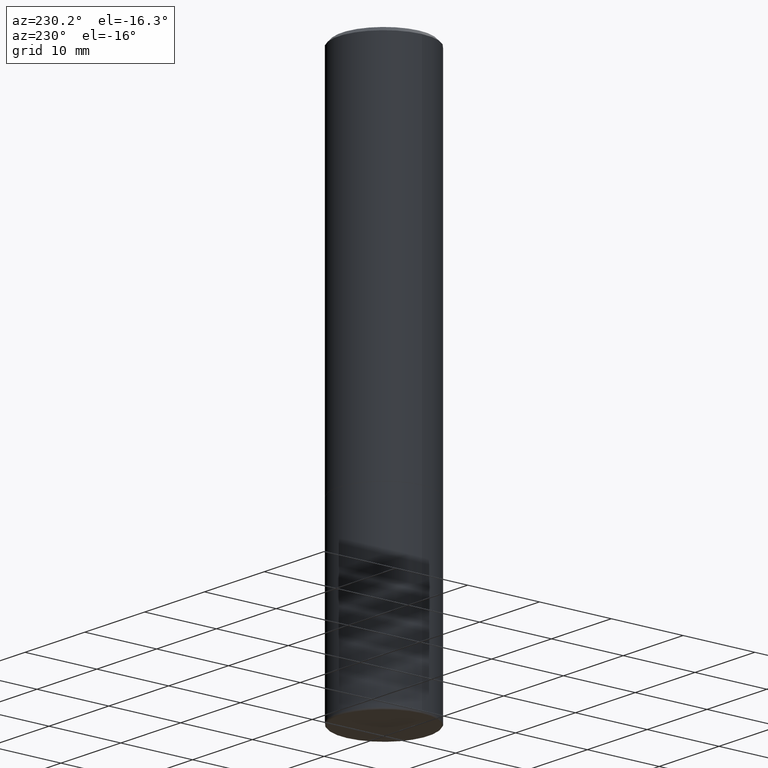
[diagram: clean part render]
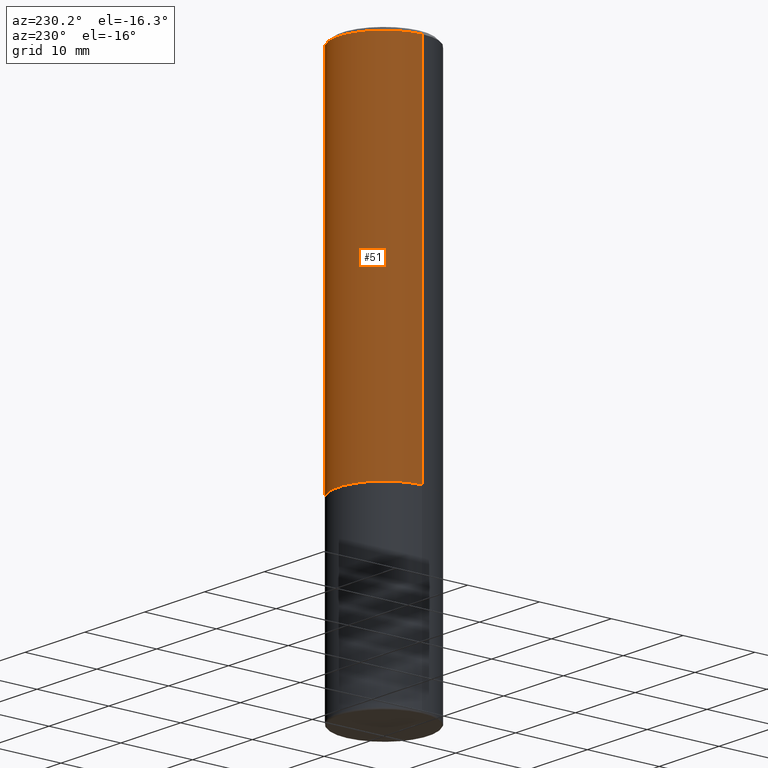
[diagram: same view with one face highlighted and labeled with its STEP entity id]
A machine part, auxiliary view. The second image highlights one B-rep face of the part: STEP entity #51.
In plain terms, the highlighted cylindrical surface (partial cylindrical patch) has radius 6.35 mm, axis along (-0, 0, 1).
Its self-contained STEP definition (entity closure, byte-faithful):
#15 = CARTESIAN_POINT ( 'NONE',  ( 0.000000000000000000, 0.000000000000000000, 0.000000000000000000 ) ) ;
#38 = AXIS2_PLACEMENT_3D ( 'NONE', #15, #136, #52 ) ;
#49 = CARTESIAN_POINT ( 'NONE',  ( -0.2500000000000002220, -1.748293572161901516E-15, -1.999000000000000110 ) ) ;
#51 = ADVANCED_FACE ( 'NONE', ( #58 ), #181, .T. ) ;
#52 = DIRECTION ( 'NONE',  ( 1.000000000000000000, -6.982962677686267499E-15, 4.876176775795936353E-29 ) ) ;
#53 = ORIENTED_EDGE ( 'NONE', *, *, #218, .F. ) ;
#58 = FACE_OUTER_BOUND ( 'NONE', #243, .T. ) ;
#72 = LINE ( 'NONE', #297, #263 ) ;
#83 = CIRCLE ( 'NONE', #380, 0.2500000000000000000 ) ;
#98 = CARTESIAN_POINT ( 'NONE',  ( -0.2500000000000000000, 1.675911042644703577E-15, -0.02000000000000005593 ) ) ;
#101 = CARTESIAN_POINT ( 'NONE',  ( 4.890937612370287172E-31, -6.982962677686310098E-17, -0.02000000000000005593 ) ) ;
#113 = DIRECTION ( 'NONE',  ( -2.445468806185136597E-29, 3.491481338843145583E-15, 1.000000000000000000 ) ) ;
#115 = VERTEX_POINT ( 'NONE', #170 ) ;
#118 = EDGE_CURVE ( 'NONE', #115, #373, #72, .T. ) ;
#125 = VECTOR ( 'NONE', #314, 39.37007874015748143 ) ;
#136 = DIRECTION ( 'NONE',  ( -2.445468806185136597E-29, 3.491481338843145583E-15, 1.000000000000000000 ) ) ;
#139 = DIRECTION ( 'NONE',  ( 1.000000000000000000, -6.982962677686268288E-15, 0.000000000000000000 ) ) ;
#145 = CARTESIAN_POINT ( 'NONE',  ( 4.888492143564088712E-29, -6.979471196347448158E-15, -1.999000000000000110 ) ) ;
#168 = DIRECTION ( 'NONE',  ( 1.000000000000000000, -6.982962677686266711E-15, 0.000000000000000000 ) ) ;
#170 = CARTESIAN_POINT ( 'NONE',  ( 0.2500000000000002220, -8.725211865769017202E-15, -1.999000000000000110 ) ) ;
#179 = ORIENTED_EDGE ( 'NONE', *, *, #322, .T. ) ;
#181 = CYLINDRICAL_SURFACE ( 'NONE', #38, 0.2500000000000001110 ) ;
#189 = LINE ( 'NONE', #418, #125 ) ;
#206 = VERTEX_POINT ( 'NONE', #98 ) ;
#218 = EDGE_CURVE ( 'NONE', #373, #206, #83, .T. ) ;
#227 = DIRECTION ( 'NONE',  ( -2.445468806185136597E-29, 3.491481338843145583E-15, 1.000000000000000000 ) ) ;
#243 = EDGE_LOOP ( 'NONE', ( #179, #402, #53, #365 ) ) ;
#263 = VECTOR ( 'NONE', #324, 39.37007874015748143 ) ;
#290 = AXIS2_PLACEMENT_3D ( 'NONE', #145, #113, #139 ) ;
#297 = CARTESIAN_POINT ( 'NONE',  ( 0.2500000000000001110, -1.745740669421567664E-15, 1.219044193948984649E-29 ) ) ;
#314 = DIRECTION ( 'NONE',  ( -2.445468806185136877E-29, 3.491481338843145188E-15, 1.000000000000000000 ) ) ;
#322 = EDGE_CURVE ( 'NONE', #115, #342, #406, .T. ) ;
#324 = DIRECTION ( 'NONE',  ( -2.445468806185136877E-29, 3.491481338843145188E-15, 1.000000000000000000 ) ) ;
#342 = VERTEX_POINT ( 'NONE', #49 ) ;
#365 = ORIENTED_EDGE ( 'NONE', *, *, #118, .F. ) ;
#373 = VERTEX_POINT ( 'NONE', #375 ) ;
#375 = CARTESIAN_POINT ( 'NONE',  ( 0.2500000000000000000, -1.784954126219746189E-15, -0.02000000000000005593 ) ) ;
#380 = AXIS2_PLACEMENT_3D ( 'NONE', #101, #227, #168 ) ;
#390 = EDGE_CURVE ( 'NONE', #342, #206, #189, .T. ) ;
#402 = ORIENTED_EDGE ( 'NONE', *, *, #390, .T. ) ;
#406 = CIRCLE ( 'NONE', #290, 0.2500000000000002220 ) ;
#418 = CARTESIAN_POINT ( 'NONE',  ( -0.2500000000000001110, 1.776356839400251254E-15, -1.229733772563727146E-29 ) ) ;